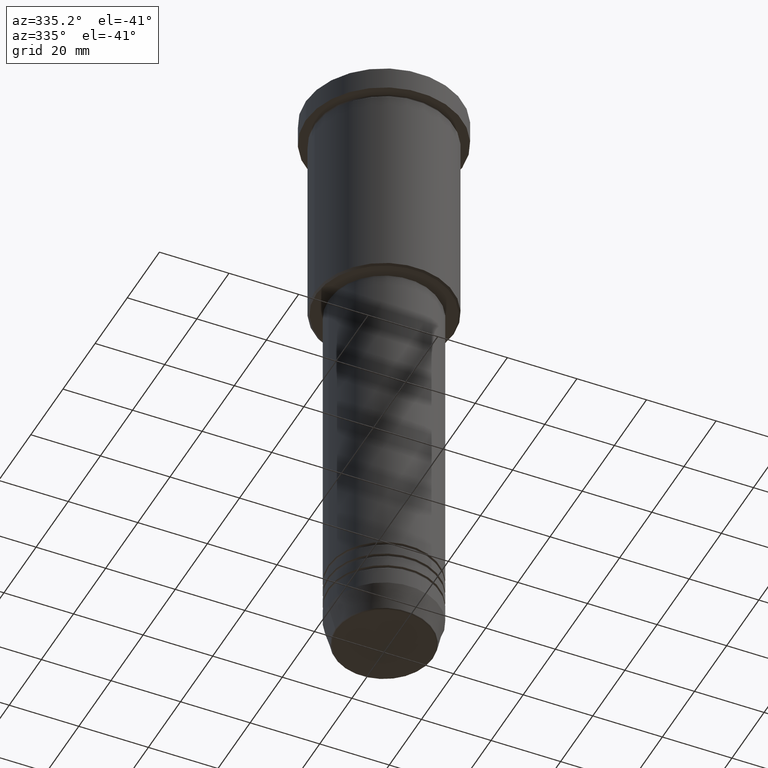
[diagram: clean part render]
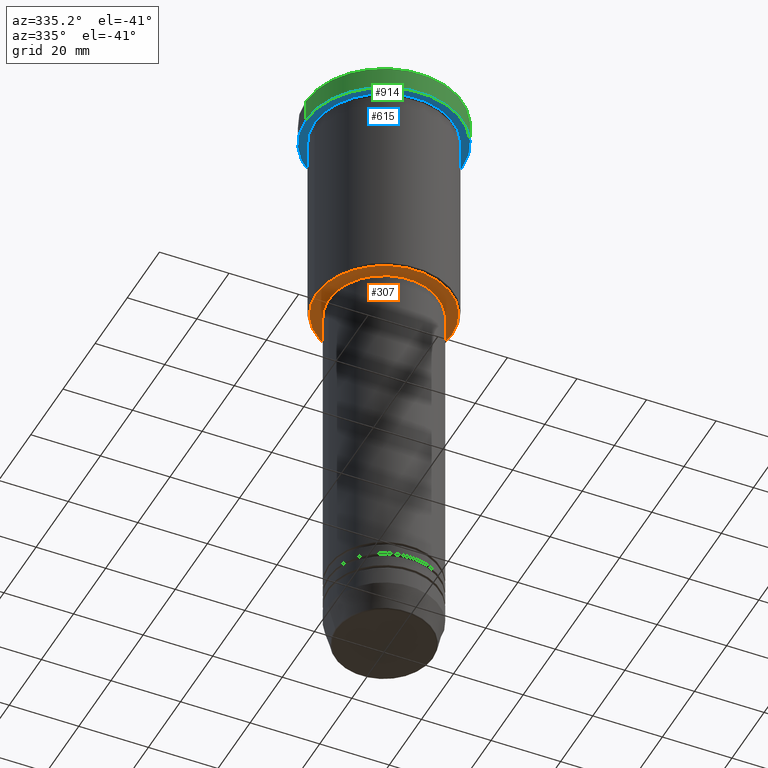
[diagram: same view with three faces highlighted in distinct colors, each labeled with its STEP entity id]
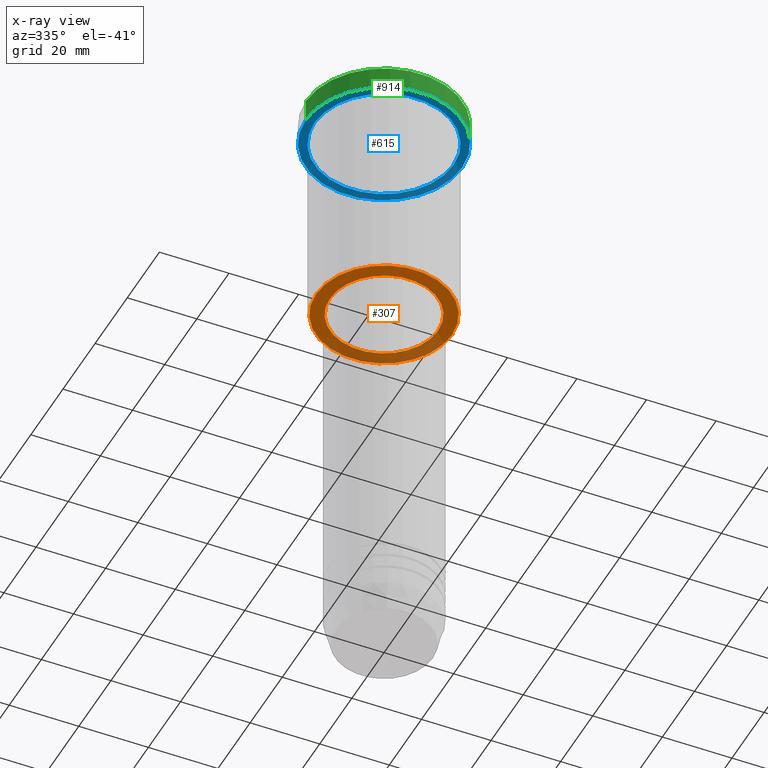
[diagram: x-ray of the same camera — body ghosted, the three highlighted faces saturated]
A machine part, auxiliary view with three faces highlighted in distinct colors.
The next image is the same camera in x-ray (body ghosted, the three faces saturated) — at least one of them is partly hidden behind the body in this view.
Their STEP definitions:

[orange] entity #307 — the highlighted planar face has unit normal (0, 0, -1).
#14 = CARTESIAN_POINT ( 'NONE',  ( -15.50000000000000000, 1.898202538678397557E-15, -66.00000000000000000 ) ) ;
#24 = AXIS2_PLACEMENT_3D ( 'NONE', #957, #1156, #872 ) ;
#45 = CARTESIAN_POINT ( 'NONE',  ( 0.000000000000000000, 20.00000000000000355, -66.00000000000000000 ) ) ;
#52 = DIRECTION ( 'NONE',  ( -0.000000000000000000, -0.000000000000000000, 1.000000000000000000 ) ) ;
#69 = ORIENTED_EDGE ( 'NONE', *, *, #969, .T. ) ;
#138 = AXIS2_PLACEMENT_3D ( 'NONE', #758, #686, #1052 ) ;
#174 = VERTEX_POINT ( 'NONE', #379 ) ;
#178 = EDGE_CURVE ( 'NONE', #174, #987, #1076, .T. ) ;
#279 = AXIS2_PLACEMENT_3D ( 'NONE', #45, #503, #428 ) ;
#306 = DIRECTION ( 'NONE',  ( -1.000000000000000000, 0.000000000000000000, 0.000000000000000000 ) ) ;
#307 = ADVANCED_FACE ( 'NONE', ( #1041, #342 ), #407, .T. ) ;
#342 = FACE_BOUND ( 'NONE', #1036, .T. ) ;
#345 = CARTESIAN_POINT ( 'NONE',  ( 15.50000000000000000, 0.000000000000000000, -66.00000000000000000 ) ) ;
#376 = DIRECTION ( 'NONE',  ( 0.000000000000000000, 0.000000000000000000, -1.000000000000000000 ) ) ;
#379 = CARTESIAN_POINT ( 'NONE',  ( -19.49999999999998934, 2.418677428316021937E-15, -66.00000000000000000 ) ) ;
#407 = PLANE ( 'NONE',  #279 ) ;
#428 = DIRECTION ( 'NONE',  ( -1.000000000000000000, 0.000000000000000000, -0.000000000000000000 ) ) ;
#431 = AXIS2_PLACEMENT_3D ( 'NONE', #1009, #376, #306 ) ;
#486 = AXIS2_PLACEMENT_3D ( 'NONE', #963, #52, #521 ) ;
#503 = DIRECTION ( 'NONE',  ( 0.000000000000000000, 0.000000000000000000, -1.000000000000000000 ) ) ;
#521 = DIRECTION ( 'NONE',  ( 1.000000000000000000, 0.000000000000000000, 0.000000000000000000 ) ) ;
#547 = CIRCLE ( 'NONE', #24, 19.49999999999998934 ) ;
#591 = VERTEX_POINT ( 'NONE', #14 ) ;
#624 = CIRCLE ( 'NONE', #486, 15.50000000000000000 ) ;
#686 = DIRECTION ( 'NONE',  ( -0.000000000000000000, -0.000000000000000000, 1.000000000000000000 ) ) ;
#723 = CIRCLE ( 'NONE', #138, 15.50000000000000000 ) ;
#758 = CARTESIAN_POINT ( 'NONE',  ( 0.000000000000000000, 0.000000000000000000, -66.00000000000000000 ) ) ;
#819 = VERTEX_POINT ( 'NONE', #345 ) ;
#872 = DIRECTION ( 'NONE',  ( -1.000000000000000000, 0.000000000000000000, 0.000000000000000000 ) ) ;
#932 = EDGE_CURVE ( 'NONE', #987, #174, #547, .T. ) ;
#955 = ORIENTED_EDGE ( 'NONE', *, *, #178, .T. ) ;
#957 = CARTESIAN_POINT ( 'NONE',  ( 0.000000000000000000, 0.000000000000000000, -66.00000000000000000 ) ) ;
#963 = CARTESIAN_POINT ( 'NONE',  ( 0.000000000000000000, 0.000000000000000000, -66.00000000000000000 ) ) ;
#969 = EDGE_CURVE ( 'NONE', #819, #591, #624, .T. ) ;
#987 = VERTEX_POINT ( 'NONE', #990 ) ;
#990 = CARTESIAN_POINT ( 'NONE',  ( 19.49999999999998934, 0.000000000000000000, -66.00000000000000000 ) ) ;
#1009 = CARTESIAN_POINT ( 'NONE',  ( 0.000000000000000000, 0.000000000000000000, -66.00000000000000000 ) ) ;
#1036 = EDGE_LOOP ( 'NONE', ( #69, #1137 ) ) ;
#1041 = FACE_OUTER_BOUND ( 'NONE', #1107, .T. ) ;
#1052 = DIRECTION ( 'NONE',  ( 1.000000000000000000, 0.000000000000000000, 0.000000000000000000 ) ) ;
#1076 = CIRCLE ( 'NONE', #431, 19.49999999999998934 ) ;
#1107 = EDGE_LOOP ( 'NONE', ( #1126, #955 ) ) ;
#1126 = ORIENTED_EDGE ( 'NONE', *, *, #932, .T. ) ;
#1137 = ORIENTED_EDGE ( 'NONE', *, *, #1161, .T. ) ;
#1156 = DIRECTION ( 'NONE',  ( 0.000000000000000000, 0.000000000000000000, -1.000000000000000000 ) ) ;
#1161 = EDGE_CURVE ( 'NONE', #591, #819, #723, .T. ) ;

[blue] entity #615 — the highlighted planar face has unit normal (0, 0, -1).
#9 = AXIS2_PLACEMENT_3D ( 'NONE', #319, #249, #782 ) ;
#17 = CARTESIAN_POINT ( 'NONE',  ( 0.000000000000000000, 0.000000000000000000, -6.999999999999995559 ) ) ;
#31 = VERTEX_POINT ( 'NONE', #745 ) ;
#33 = ORIENTED_EDGE ( 'NONE', *, *, #1045, .F. ) ;
#37 = VERTEX_POINT ( 'NONE', #191 ) ;
#44 = AXIS2_PLACEMENT_3D ( 'NONE', #17, #164, #752 ) ;
#130 = ORIENTED_EDGE ( 'NONE', *, *, #273, .F. ) ;
#164 = DIRECTION ( 'NONE',  ( -0.000000000000000000, -0.000000000000000000, 1.000000000000000000 ) ) ;
#191 = CARTESIAN_POINT ( 'NONE',  ( -22.50000000000000000, 2.755455298081544778E-15, -6.999999999999995559 ) ) ;
#249 = DIRECTION ( 'NONE',  ( -0.000000000000000000, -0.000000000000000000, 1.000000000000000000 ) ) ;
#250 = DIRECTION ( 'NONE',  ( -0.000000000000000000, -0.000000000000000000, 1.000000000000000000 ) ) ;
#273 = EDGE_CURVE ( 'NONE', #328, #37, #699, .T. ) ;
#276 = EDGE_LOOP ( 'NONE', ( #773, #405 ) ) ;
#304 = CARTESIAN_POINT ( 'NONE',  ( 0.000000000000000000, 22.50000000000000000, -6.999999999999995559 ) ) ;
#319 = CARTESIAN_POINT ( 'NONE',  ( 0.000000000000000000, 0.000000000000000000, -6.999999999999995559 ) ) ;
#328 = VERTEX_POINT ( 'NONE', #437 ) ;
#367 = DIRECTION ( 'NONE',  ( -0.000000000000000000, -0.000000000000000000, 1.000000000000000000 ) ) ;
#372 = AXIS2_PLACEMENT_3D ( 'NONE', #304, #843, #666 ) ;
#378 = FACE_BOUND ( 'NONE', #276, .T. ) ;
#405 = ORIENTED_EDGE ( 'NONE', *, *, #476, .T. ) ;
#437 = CARTESIAN_POINT ( 'NONE',  ( 22.50000000000000000, 0.000000000000000000, -6.999999999999995559 ) ) ;
#453 = CIRCLE ( 'NONE', #9, 20.00000000000000000 ) ;
#476 = EDGE_CURVE ( 'NONE', #31, #853, #603, .T. ) ;
#578 = EDGE_LOOP ( 'NONE', ( #130, #33 ) ) ;
#603 = CIRCLE ( 'NONE', #701, 20.00000000000000000 ) ;
#611 = DIRECTION ( 'NONE',  ( 1.000000000000000000, 0.000000000000000000, 0.000000000000000000 ) ) ;
#615 = ADVANCED_FACE ( 'NONE', ( #378, #753 ), #662, .T. ) ;
#662 = PLANE ( 'NONE',  #372 ) ;
#666 = DIRECTION ( 'NONE',  ( -1.000000000000000000, 0.000000000000000000, -0.000000000000000000 ) ) ;
#694 = EDGE_CURVE ( 'NONE', #853, #31, #453, .T. ) ;
#699 = CIRCLE ( 'NONE', #1094, 22.50000000000000000 ) ;
#701 = AXIS2_PLACEMENT_3D ( 'NONE', #728, #367, #888 ) ;
#728 = CARTESIAN_POINT ( 'NONE',  ( 0.000000000000000000, 0.000000000000000000, -6.999999999999995559 ) ) ;
#745 = CARTESIAN_POINT ( 'NONE',  ( 20.00000000000000000, 2.449293598294706513E-15, -6.999999999999995559 ) ) ;
#752 = DIRECTION ( 'NONE',  ( 1.000000000000000000, 0.000000000000000000, 0.000000000000000000 ) ) ;
#753 = FACE_OUTER_BOUND ( 'NONE', #578, .T. ) ;
#773 = ORIENTED_EDGE ( 'NONE', *, *, #694, .T. ) ;
#782 = DIRECTION ( 'NONE',  ( -1.000000000000000000, 0.000000000000000000, 0.000000000000000000 ) ) ;
#843 = DIRECTION ( 'NONE',  ( 0.000000000000000000, 0.000000000000000000, -1.000000000000000000 ) ) ;
#853 = VERTEX_POINT ( 'NONE', #948 ) ;
#888 = DIRECTION ( 'NONE',  ( -1.000000000000000000, 0.000000000000000000, 0.000000000000000000 ) ) ;
#941 = CARTESIAN_POINT ( 'NONE',  ( 0.000000000000000000, 0.000000000000000000, -6.999999999999995559 ) ) ;
#948 = CARTESIAN_POINT ( 'NONE',  ( -20.00000000000000000, 0.000000000000000000, -6.999999999999995559 ) ) ;
#1045 = EDGE_CURVE ( 'NONE', #37, #328, #1113, .T. ) ;
#1094 = AXIS2_PLACEMENT_3D ( 'NONE', #941, #250, #611 ) ;
#1113 = CIRCLE ( 'NONE', #44, 22.50000000000000000 ) ;

[green] entity #914 — the highlighted cylindrical surface (partial cylindrical patch) has radius 22.5 mm, axis along (-0, -0, 1).
#17 = CARTESIAN_POINT ( 'NONE',  ( 0.000000000000000000, 0.000000000000000000, -6.999999999999995559 ) ) ;
#37 = VERTEX_POINT ( 'NONE', #191 ) ;
#44 = AXIS2_PLACEMENT_3D ( 'NONE', #17, #164, #752 ) ;
#78 = AXIS2_PLACEMENT_3D ( 'NONE', #532, #163, #83 ) ;
#83 = DIRECTION ( 'NONE',  ( 1.000000000000000000, 0.000000000000000000, 0.000000000000000000 ) ) ;
#128 = CARTESIAN_POINT ( 'NONE',  ( 0.000000000000000000, 0.000000000000000000, 0.000000000000000000 ) ) ;
#142 = FACE_OUTER_BOUND ( 'NONE', #632, .T. ) ;
#149 = CARTESIAN_POINT ( 'NONE',  ( -22.50000000000000000, 2.755455298081544778E-15, 0.000000000000000000 ) ) ;
#163 = DIRECTION ( 'NONE',  ( 0.000000000000000000, 0.000000000000000000, -1.000000000000000000 ) ) ;
#164 = DIRECTION ( 'NONE',  ( -0.000000000000000000, -0.000000000000000000, 1.000000000000000000 ) ) ;
#191 = CARTESIAN_POINT ( 'NONE',  ( -22.50000000000000000, 2.755455298081544778E-15, -6.999999999999995559 ) ) ;
#199 = AXIS2_PLACEMENT_3D ( 'NONE', #128, #1133, #255 ) ;
#229 = EDGE_CURVE ( 'NONE', #328, #309, #599, .T. ) ;
#255 = DIRECTION ( 'NONE',  ( 1.000000000000000000, 0.000000000000000000, 0.000000000000000000 ) ) ;
#296 = VECTOR ( 'NONE', #513, 1000.000000000000000 ) ;
#309 = VERTEX_POINT ( 'NONE', #952 ) ;
#328 = VERTEX_POINT ( 'NONE', #437 ) ;
#436 = EDGE_CURVE ( 'NONE', #309, #1043, #676, .T. ) ;
#437 = CARTESIAN_POINT ( 'NONE',  ( 22.50000000000000000, 0.000000000000000000, -6.999999999999995559 ) ) ;
#502 = ORIENTED_EDGE ( 'NONE', *, *, #1045, .T. ) ;
#513 = DIRECTION ( 'NONE',  ( -0.000000000000000000, -0.000000000000000000, 1.000000000000000000 ) ) ;
#520 = CARTESIAN_POINT ( 'NONE',  ( 22.50000000000000000, 0.000000000000000000, 0.000000000000000000 ) ) ;
#532 = CARTESIAN_POINT ( 'NONE',  ( 0.000000000000000000, 0.000000000000000000, -0.4999999999999935052 ) ) ;
#599 = LINE ( 'NONE', #520, #951 ) ;
#632 = EDGE_LOOP ( 'NONE', ( #849, #502, #669, #730 ) ) ;
#669 = ORIENTED_EDGE ( 'NONE', *, *, #229, .T. ) ;
#676 = CIRCLE ( 'NONE', #78, 22.50000000000000000 ) ;
#698 = DIRECTION ( 'NONE',  ( -0.000000000000000000, -0.000000000000000000, 1.000000000000000000 ) ) ;
#730 = ORIENTED_EDGE ( 'NONE', *, *, #436, .T. ) ;
#737 = EDGE_CURVE ( 'NONE', #37, #1043, #791, .T. ) ;
#752 = DIRECTION ( 'NONE',  ( 1.000000000000000000, 0.000000000000000000, 0.000000000000000000 ) ) ;
#791 = LINE ( 'NONE', #149, #296 ) ;
#849 = ORIENTED_EDGE ( 'NONE', *, *, #737, .F. ) ;
#914 = ADVANCED_FACE ( 'NONE', ( #142 ), #1067, .T. ) ;
#951 = VECTOR ( 'NONE', #698, 1000.000000000000000 ) ;
#952 = CARTESIAN_POINT ( 'NONE',  ( 22.50000000000000000, 0.000000000000000000, -0.4999999999999935052 ) ) ;
#985 = CARTESIAN_POINT ( 'NONE',  ( -22.50000000000000000, 2.755455298081544778E-15, -0.4999999999999935052 ) ) ;
#1043 = VERTEX_POINT ( 'NONE', #985 ) ;
#1045 = EDGE_CURVE ( 'NONE', #37, #328, #1113, .T. ) ;
#1067 = CYLINDRICAL_SURFACE ( 'NONE', #199, 22.50000000000000000 ) ;
#1113 = CIRCLE ( 'NONE', #44, 22.50000000000000000 ) ;
#1133 = DIRECTION ( 'NONE',  ( -0.000000000000000000, -0.000000000000000000, 1.000000000000000000 ) ) ;